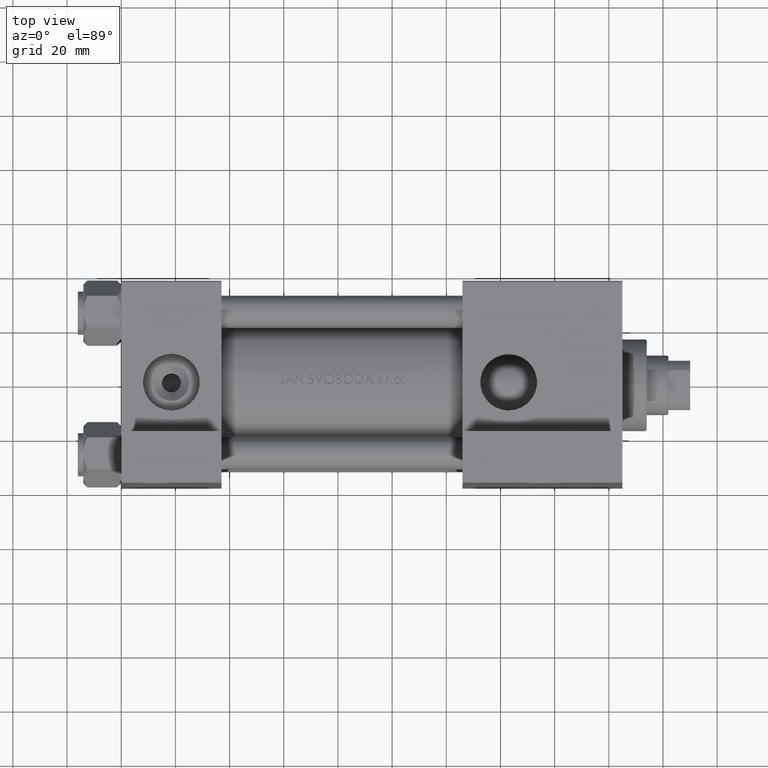
[diagram: clean part render]
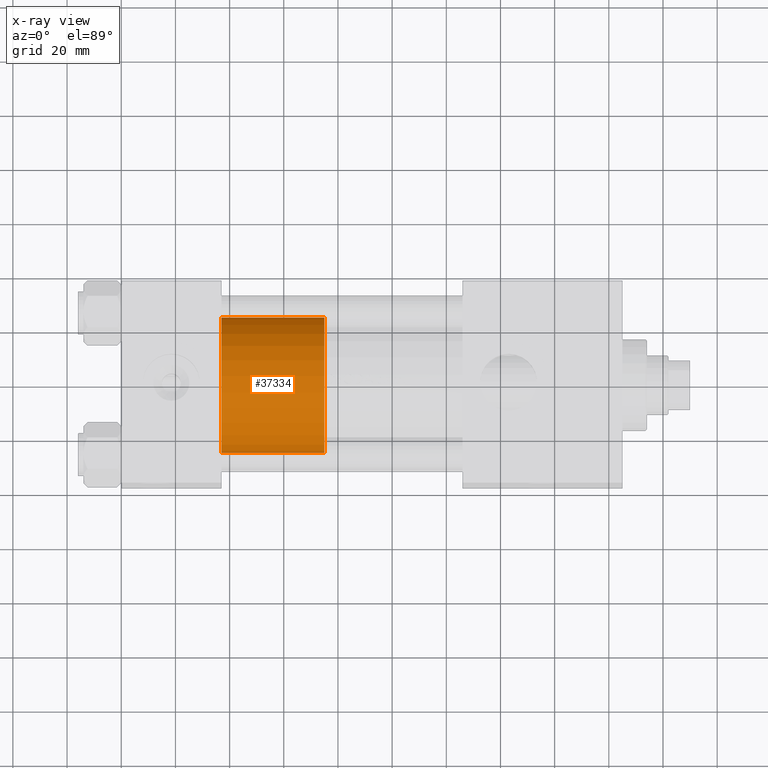
[diagram: x-ray — body ghosted, one internal face saturated and labeled with its STEP entity id]
A machine part, top view, then the same camera in x-ray: the body is ghosted and one INTERNAL B-rep face — a face not visible from any outside direction — is saturated and labeled: STEP entity #37334.
In plain terms, the highlighted cylindrical surface (partial cylindrical patch) has radius 25 mm, axis along (-1, 0, 0).
Its self-contained STEP definition (entity closure, byte-faithful):
#3322 = DIRECTION ( 'NONE',  ( -0.000000000000000000, -0.000000000000000000, -1.000000000000000000 ) ) ;
#4729 = EDGE_CURVE ( 'NONE', #4897, #20363, #38908, .T. ) ;
#4862 = VECTOR ( 'NONE', #12745, 1000.000000000000000 ) ;
#4897 = VERTEX_POINT ( 'NONE', #36407 ) ;
#5254 = CIRCLE ( 'NONE', #33084, 25.00000000000000000 ) ;
#7783 = LINE ( 'NONE', #33947, #35603 ) ;
#9394 = DIRECTION ( 'NONE',  ( 0.000000000000000000, 0.000000000000000000, 1.000000000000000000 ) ) ;
#10941 = CARTESIAN_POINT ( 'NONE',  ( 25.00000000000000000, 3.061616997868383043E-15, 0.000000000000000000 ) ) ;
#12509 = CARTESIAN_POINT ( 'NONE',  ( -25.00000000000000000, 0.000000000000000000, 38.00000000000000000 ) ) ;
#12745 = DIRECTION ( 'NONE',  ( -0.000000000000000000, -0.000000000000000000, -1.000000000000000000 ) ) ;
#12977 = DIRECTION ( 'NONE',  ( -1.000000000000000000, 0.000000000000000000, 0.000000000000000000 ) ) ;
#14113 = DIRECTION ( 'NONE',  ( 1.000000000000000000, 0.000000000000000000, 0.000000000000000000 ) ) ;
#15117 = EDGE_CURVE ( 'NONE', #20363, #15694, #16983, .T. ) ;
#15296 = DIRECTION ( 'NONE',  ( 0.000000000000000000, 0.000000000000000000, 1.000000000000000000 ) ) ;
#15694 = VERTEX_POINT ( 'NONE', #10941 ) ;
#16983 = CIRCLE ( 'NONE', #23353, 25.00000000000000000 ) ;
#18449 = ORIENTED_EDGE ( 'NONE', *, *, #20344, .F. ) ;
#20344 = EDGE_CURVE ( 'NONE', #4897, #40590, #5254, .T. ) ;
#20363 = VERTEX_POINT ( 'NONE', #23763 ) ;
#23353 = AXIS2_PLACEMENT_3D ( 'NONE', #48253, #9394, #14113 ) ;
#23763 = CARTESIAN_POINT ( 'NONE',  ( -25.00000000000000000, 0.000000000000000000, 0.000000000000000000 ) ) ;
#23948 = CARTESIAN_POINT ( 'NONE',  ( 0.000000000000000000, 0.000000000000000000, 38.00000000000000000 ) ) ;
#24192 = DIRECTION ( 'NONE',  ( -0.000000000000000000, -0.000000000000000000, -1.000000000000000000 ) ) ;
#24676 = CARTESIAN_POINT ( 'NONE',  ( 25.00000000000000000, 3.061616997868383043E-15, 38.00000000000000000 ) ) ;
#26586 = ORIENTED_EDGE ( 'NONE', *, *, #4729, .T. ) ;
#26779 = EDGE_LOOP ( 'NONE', ( #32541, #18449, #26586, #42395 ) ) ;
#30914 = FACE_OUTER_BOUND ( 'NONE', #26779, .T. ) ;
#30969 = CARTESIAN_POINT ( 'NONE',  ( 0.000000000000000000, 0.000000000000000000, 38.00000000000000000 ) ) ;
#31893 = CYLINDRICAL_SURFACE ( 'NONE', #45752, 25.00000000000000000 ) ;
#32541 = ORIENTED_EDGE ( 'NONE', *, *, #47311, .F. ) ;
#33084 = AXIS2_PLACEMENT_3D ( 'NONE', #30969, #15296, #45929 ) ;
#33947 = CARTESIAN_POINT ( 'NONE',  ( 25.00000000000000000, 3.061616997868383043E-15, 38.00000000000000000 ) ) ;
#35603 = VECTOR ( 'NONE', #3322, 1000.000000000000000 ) ;
#36407 = CARTESIAN_POINT ( 'NONE',  ( -25.00000000000000000, 0.000000000000000000, 38.00000000000000000 ) ) ;
#37334 = ADVANCED_FACE ( 'NONE', ( #30914 ), #31893, .T. ) ;
#38908 = LINE ( 'NONE', #12509, #4862 ) ;
#40590 = VERTEX_POINT ( 'NONE', #24676 ) ;
#42395 = ORIENTED_EDGE ( 'NONE', *, *, #15117, .T. ) ;
#45752 = AXIS2_PLACEMENT_3D ( 'NONE', #23948, #24192, #12977 ) ;
#45929 = DIRECTION ( 'NONE',  ( 1.000000000000000000, 0.000000000000000000, 0.000000000000000000 ) ) ;
#47311 = EDGE_CURVE ( 'NONE', #40590, #15694, #7783, .T. ) ;
#48253 = CARTESIAN_POINT ( 'NONE',  ( 0.000000000000000000, 0.000000000000000000, 0.000000000000000000 ) ) ;